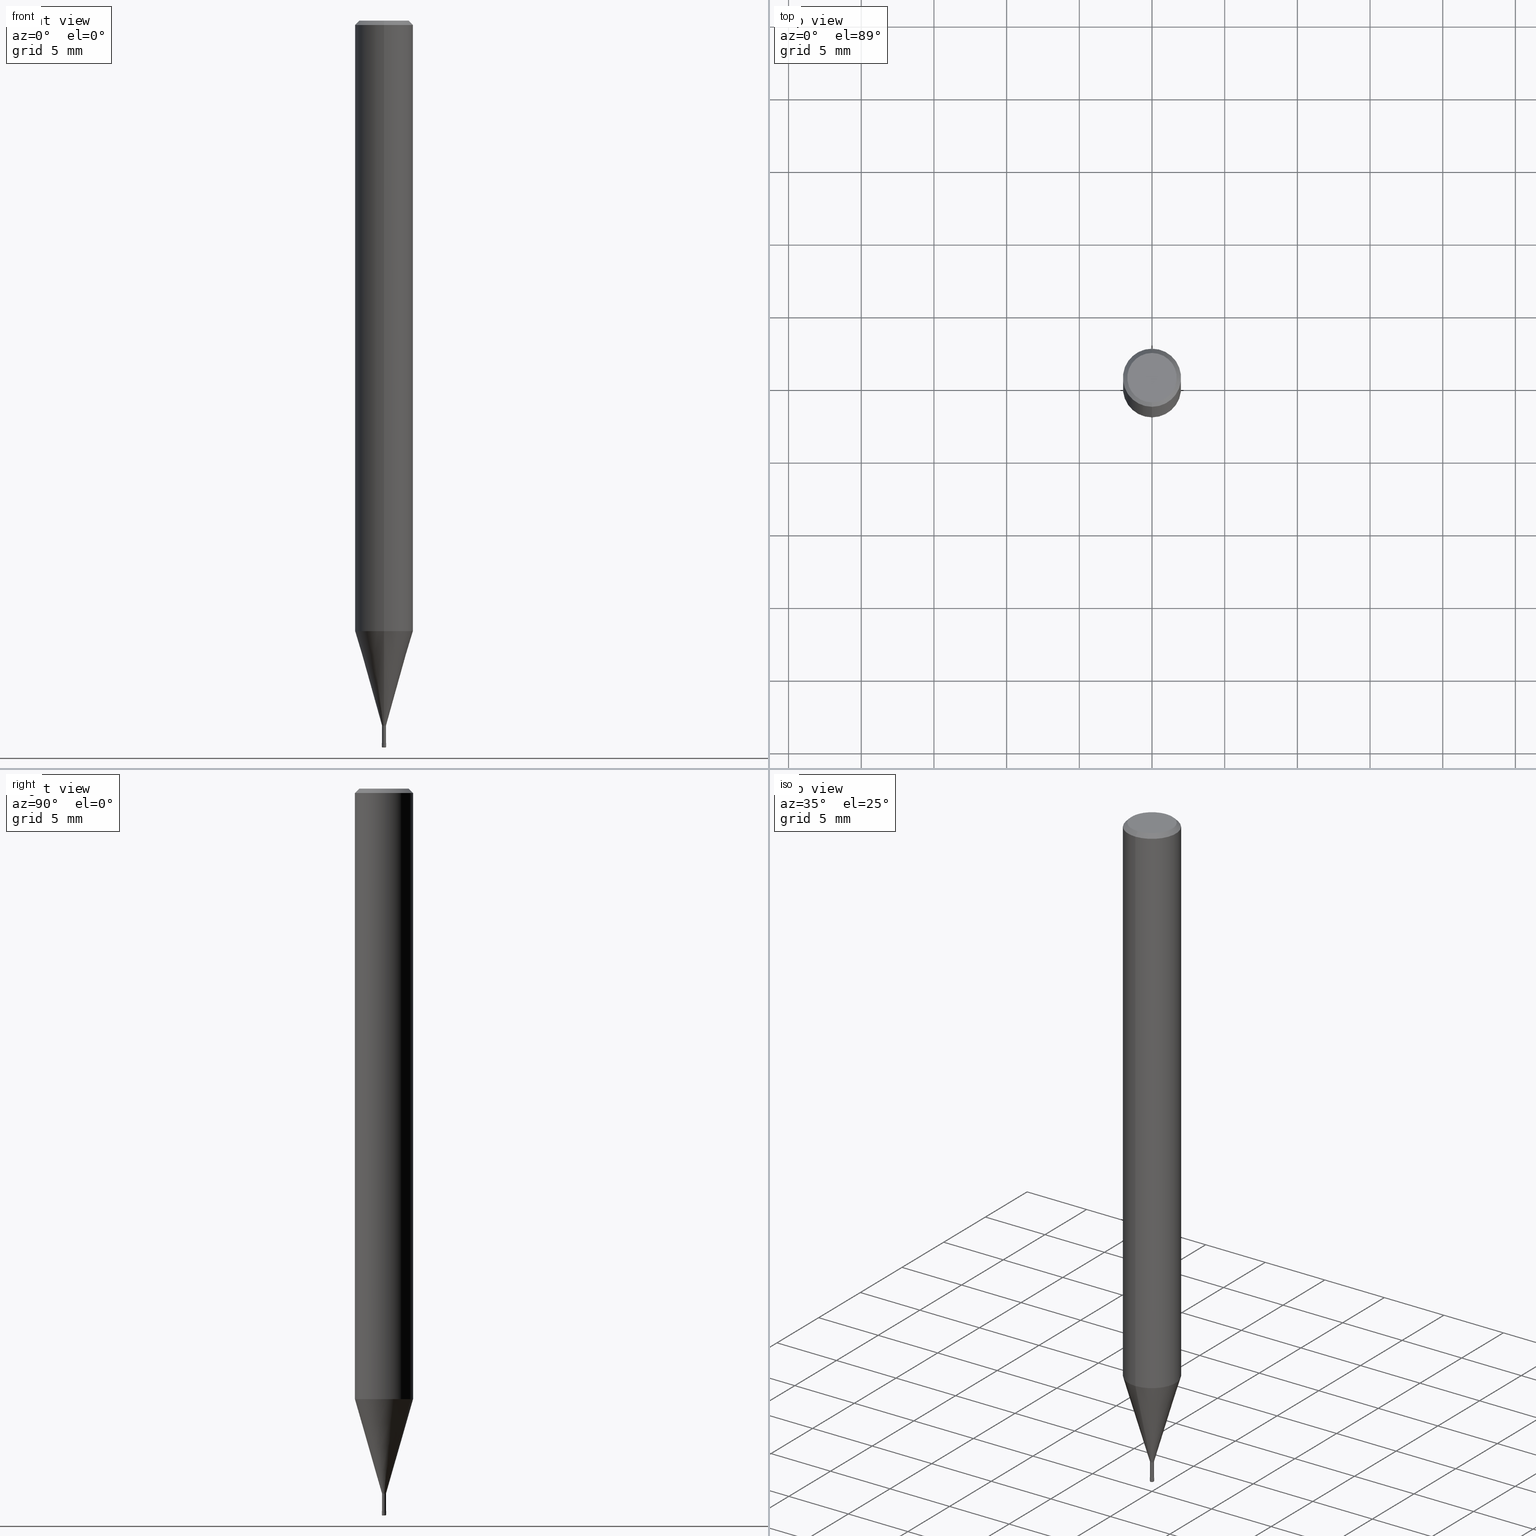
[diagram: canonical four-view strip — front | top / right | iso, engineering-drawing reading convention]
A machine part, canonical four-view strip (front | top / right | iso — engineering-drawing reading convention). The complete STEP part file that produces these views, byte-faithful:
ISO-10303-21;
HEADER;
FILE_DESCRIPTION(('no description'),'unknown implementation level');
FILE_NAME('HLRS2003-005-015E-Huellk.stp','  ',('CIMSOURCE GmbH'),('CADClick - KiM GmbH - www.kimweb.de'),'unknown preprocess','ACIS','unknown authorization');
FILE_SCHEMA(('automotive_design'));
ENDSEC;
DATA;
#1=MECHANICAL_DESIGN_GEOMETRIC_PRESENTATION_REPRESENTATION(' ',(#14,#15,#16,#17,#18,#19,#20,#21,#22,#23,#24,#25,#26,#27,#28,#29,#30,#31,#32,#33,#34,#35,#36,#37,#38,#39,#40,#41,#42,#43,#44,#45,#46,#47,#48,#49,#50,#51,#52,#53,#54,#55,#56,#57,#58,#59,#60,#61,#62,#63,#64,#65,#66,#67,#68,#69,#70,#71,#72,#73,#74,#75,#76,#77,#78,#79,#80),#10);
#2=PRODUCT_DEFINITION_CONTEXT('',#81,'design');
#3=APPLICATION_PROTOCOL_DEFINITION('INTERNATIONAL STANDARD','automotive_design',1994,#81);
#4=PRODUCT_CATEGORY_RELATIONSHIP('NONE','NONE',#82,#83);
#5=SHAPE_DEFINITION_REPRESENTATION(#84,#85);
#6=PRODUCT_DEFINITION_CONTEXT('',#86,'design');
#7=APPLICATION_PROTOCOL_DEFINITION('INTERNATIONAL STANDARD','automotive_design',1994,#86);
#8=PRODUCT_CATEGORY_RELATIONSHIP('NONE','NONE',#87,#88);
#9=SHAPE_DEFINITION_REPRESENTATION(#89,#90);
#10= (GEOMETRIC_REPRESENTATION_CONTEXT(3)GLOBAL_UNCERTAINTY_ASSIGNED_CONTEXT((#93))GLOBAL_UNIT_ASSIGNED_CONTEXT((#95,#96,#97))REPRESENTATION_CONTEXT('NONE','WORKSPACE'));
#14=STYLED_ITEM('',(#99),#100);
#15=STYLED_ITEM('',(#101),#102);
#16=STYLED_ITEM('',(#103),#104);
#17=STYLED_ITEM('',(#105),#106);
#18=STYLED_ITEM('',(#107),#108);
#19=STYLED_ITEM('',(#109),#110);
#20=STYLED_ITEM('',(#111),#112);
#21=STYLED_ITEM('',(#113),#114);
#22=STYLED_ITEM('',(#115),#116);
#23=STYLED_ITEM('',(#117),#118);
#24=STYLED_ITEM('',(#119),#120);
#25=STYLED_ITEM('',(#121),#122);
#26=STYLED_ITEM('',(#123),#124);
#27=STYLED_ITEM('',(#125),#126);
#28=STYLED_ITEM('',(#127),#128);
#29=STYLED_ITEM('',(#129),#130);
#30=STYLED_ITEM('',(#131),#132);
#31=STYLED_ITEM('',(#133),#134);
#32=STYLED_ITEM('',(#135),#136);
#33=STYLED_ITEM('',(#137),#138);
#34=STYLED_ITEM('',(#139),#140);
#35=STYLED_ITEM('',(#141),#142);
#36=STYLED_ITEM('',(#143),#144);
#37=STYLED_ITEM('',(#145),#146);
#38=STYLED_ITEM('',(#147),#148);
#39=STYLED_ITEM('',(#149),#150);
#40=STYLED_ITEM('',(#151),#152);
#41=STYLED_ITEM('',(#153),#154);
#42=STYLED_ITEM('',(#155),#156);
#43=STYLED_ITEM('',(#157),#158);
#44=STYLED_ITEM('',(#159),#160);
#45=STYLED_ITEM('',(#161),#162);
#46=STYLED_ITEM('',(#163),#164);
#47=STYLED_ITEM('',(#165),#166);
#48=STYLED_ITEM('',(#167),#168);
#49=STYLED_ITEM('',(#169),#170);
#50=STYLED_ITEM('',(#171),#172);
#51=STYLED_ITEM('',(#173),#174);
#52=STYLED_ITEM('',(#175),#176);
#53=STYLED_ITEM('',(#177),#178);
#54=STYLED_ITEM('',(#179),#180);
#55=STYLED_ITEM('',(#181),#182);
#56=STYLED_ITEM('',(#183),#184);
#57=STYLED_ITEM('',(#185),#186);
#58=STYLED_ITEM('',(#187),#188);
#59=STYLED_ITEM('',(#189),#190);
#60=STYLED_ITEM('',(#191),#192);
#61=STYLED_ITEM('',(#193),#194);
#62=STYLED_ITEM('',(#195),#196);
#63=STYLED_ITEM('',(#197),#198);
#64=STYLED_ITEM('',(#199),#200);
#65=STYLED_ITEM('',(#201),#202);
#66=STYLED_ITEM('',(#203),#204);
#67=STYLED_ITEM('',(#205),#206);
#68=STYLED_ITEM('',(#207),#208);
#69=STYLED_ITEM('',(#209),#210);
#70=STYLED_ITEM('',(#211),#212);
#71=STYLED_ITEM('',(#213),#214);
#72=STYLED_ITEM('',(#215),#216);
#73=STYLED_ITEM('',(#217),#218);
#74=STYLED_ITEM('',(#219),#220);
#75=STYLED_ITEM('',(#221),#222);
#76=STYLED_ITEM('',(#223),#224);
#77=STYLED_ITEM('',(#225),#226);
#78=STYLED_ITEM('',(#227),#228);
#79=STYLED_ITEM('',(#229),#230);
#80=STYLED_ITEM('',(#231),#232);
#81=APPLICATION_CONTEXT(' ');
#82=PRODUCT_CATEGORY('part','NONE');
#83=PRODUCT_RELATED_PRODUCT_CATEGORY('detail',' ',(#233));
#84=PRODUCT_DEFINITION_SHAPE('NONE','NONE',#234);
#85=ADVANCED_BREP_SHAPE_REPRESENTATION('1',(#194,#235),#10);
#86=APPLICATION_CONTEXT(' ');
#87=PRODUCT_CATEGORY('part','NONE');
#88=PRODUCT_RELATED_PRODUCT_CATEGORY('detail',' ',(#236));
#89=PRODUCT_DEFINITION_SHAPE('NONE','NONE',#237);
#90=ADVANCED_BREP_SHAPE_REPRESENTATION('2',(#170,#238),#10);
#93=UNCERTAINTY_MEASURE_WITH_UNIT(LENGTH_MEASURE(1.0E-006),#95,'','');
#95= (CONVERSION_BASED_UNIT('MILLIMETRE',#241)LENGTH_UNIT()NAMED_UNIT(#244));
#96= (NAMED_UNIT(#246)PLANE_ANGLE_UNIT()SI_UNIT($,.RADIAN.));
#97= (NAMED_UNIT(#246)SOLID_ANGLE_UNIT()SI_UNIT($,.STERADIAN.));
#99=PRESENTATION_STYLE_ASSIGNMENT((#252));
#100=VERTEX_POINT('',#253);
#101=PRESENTATION_STYLE_ASSIGNMENT((#254));
#102=EDGE_CURVE('',#220,#138,#255,.T.);
#103=PRESENTATION_STYLE_ASSIGNMENT((#256));
#104=VERTEX_POINT('',#257);
#105=PRESENTATION_STYLE_ASSIGNMENT((#258));
#106=EDGE_CURVE('',#230,#104,#259,.T.);
#107=PRESENTATION_STYLE_ASSIGNMENT((#260));
#108=EDGE_CURVE('',#190,#210,#261,.T.);
#109=PRESENTATION_STYLE_ASSIGNMENT((#262));
#110=ADVANCED_FACE('',(#263),#264,.T.);
#111=PRESENTATION_STYLE_ASSIGNMENT((#265));
#112=EDGE_CURVE('',#178,#140,#266,.T.);
#113=PRESENTATION_STYLE_ASSIGNMENT((#267));
#114=ADVANCED_FACE('',(#268,#269),#270,.T.);
#115=PRESENTATION_STYLE_ASSIGNMENT((#271));
#116=EDGE_CURVE('',#210,#190,#272,.T.);
#117=PRESENTATION_STYLE_ASSIGNMENT((#273));
#118=ADVANCED_FACE('',(#274),#275,.T.);
#119=PRESENTATION_STYLE_ASSIGNMENT((#276));
#120=EDGE_CURVE('',#140,#182,#277,.T.);
#121=PRESENTATION_STYLE_ASSIGNMENT((#278));
#122=EDGE_CURVE('',#174,#146,#279,.T.);
#123=PRESENTATION_STYLE_ASSIGNMENT((#280));
#124=ADVANCED_FACE('',(#281),#282,.T.);
#125=PRESENTATION_STYLE_ASSIGNMENT((#283));
#126=ADVANCED_FACE('',(#284),#285,.T.);
#127=PRESENTATION_STYLE_ASSIGNMENT((#286));
#128=VERTEX_POINT('',#287);
#129=PRESENTATION_STYLE_ASSIGNMENT((#288));
#130=EDGE_CURVE('',#128,#198,#289,.T.);
#131=PRESENTATION_STYLE_ASSIGNMENT((#290));
#132=EDGE_CURVE('',#148,#174,#291,.T.);
#133=PRESENTATION_STYLE_ASSIGNMENT((#292));
#134=EDGE_CURVE('',#182,#168,#293,.T.);
#135=PRESENTATION_STYLE_ASSIGNMENT((#294));
#136=ADVANCED_FACE('',(#295),#296,.T.);
#137=PRESENTATION_STYLE_ASSIGNMENT((#297));
#138=VERTEX_POINT('',#298);
#139=PRESENTATION_STYLE_ASSIGNMENT((#299));
#140=VERTEX_POINT('',#300);
#141=PRESENTATION_STYLE_ASSIGNMENT((#301));
#142=EDGE_CURVE('',#100,#186,#302,.T.);
#143=PRESENTATION_STYLE_ASSIGNMENT((#303));
#144=EDGE_CURVE('',#168,#182,#304,.T.);
#145=PRESENTATION_STYLE_ASSIGNMENT((#305));
#146=VERTEX_POINT('',#306);
#147=PRESENTATION_STYLE_ASSIGNMENT((#307));
#148=VERTEX_POINT('',#308);
#149=PRESENTATION_STYLE_ASSIGNMENT((#309));
#150=EDGE_CURVE('',#104,#210,#310,.T.);
#151=PRESENTATION_STYLE_ASSIGNMENT((#311));
#152=EDGE_CURVE('',#188,#198,#312,.T.);
#153=PRESENTATION_STYLE_ASSIGNMENT((#313));
#154=ADVANCED_FACE('',(#314),#315,.T.);
#155=PRESENTATION_STYLE_ASSIGNMENT((#316));
#156=EDGE_CURVE('',#188,#148,#317,.T.);
#157=PRESENTATION_STYLE_ASSIGNMENT((#318));
#158=ADVANCED_FACE('',(#319),#320,.T.);
#159=PRESENTATION_STYLE_ASSIGNMENT((#321));
#160=EDGE_CURVE('',#186,#100,#322,.T.);
#161=PRESENTATION_STYLE_ASSIGNMENT((#323));
#162=EDGE_CURVE('',#104,#230,#324,.T.);
#163=PRESENTATION_STYLE_ASSIGNMENT((#325));
#164=ADVANCED_FACE('',(#326),#327,.T.);
#165=PRESENTATION_STYLE_ASSIGNMENT((#328));
#166=ADVANCED_FACE('',(#329),#330,.T.);
#167=PRESENTATION_STYLE_ASSIGNMENT((#331));
#168=VERTEX_POINT('',#332);
#169=PRESENTATION_STYLE_ASSIGNMENT((#333));
#170=MANIFOLD_SOLID_BREP('2',#334);
#171=PRESENTATION_STYLE_ASSIGNMENT((#335));
#172=ADVANCED_FACE('',(#336),#337,.T.);
#173=PRESENTATION_STYLE_ASSIGNMENT((#338));
#174=VERTEX_POINT('',#339);
#175=PRESENTATION_STYLE_ASSIGNMENT((#340));
#176=ADVANCED_FACE('',(#341),#342,.T.);
#177=PRESENTATION_STYLE_ASSIGNMENT((#343));
#178=VERTEX_POINT('',#344);
#179=PRESENTATION_STYLE_ASSIGNMENT((#345));
#180=EDGE_CURVE('',#148,#128,#346,.T.);
#181=PRESENTATION_STYLE_ASSIGNMENT((#347));
#182=VERTEX_POINT('',#348);
#183=PRESENTATION_STYLE_ASSIGNMENT((#349));
#184=EDGE_CURVE('',#146,#128,#350,.T.);
#185=PRESENTATION_STYLE_ASSIGNMENT((#351));
#186=VERTEX_POINT('',#352);
#187=PRESENTATION_STYLE_ASSIGNMENT((#353));
#188=VERTEX_POINT('',#354);
#189=PRESENTATION_STYLE_ASSIGNMENT((#355));
#190=VERTEX_POINT('',#356);
#191=PRESENTATION_STYLE_ASSIGNMENT((#357));
#192=EDGE_CURVE('',#138,#190,#358,.T.);
#193=PRESENTATION_STYLE_ASSIGNMENT((#359));
#194=MANIFOLD_SOLID_BREP('1',#360);
#195=PRESENTATION_STYLE_ASSIGNMENT((#361));
#196=EDGE_CURVE('',#168,#178,#362,.T.);
#197=PRESENTATION_STYLE_ASSIGNMENT((#363));
#198=VERTEX_POINT('',#364);
#199=PRESENTATION_STYLE_ASSIGNMENT((#365));
#200=ADVANCED_FACE('',(#366),#367,.T.);
#201=PRESENTATION_STYLE_ASSIGNMENT((#368));
#202=ADVANCED_FACE('',(#369),#370,.T.);
#203=PRESENTATION_STYLE_ASSIGNMENT((#371));
#204=ADVANCED_FACE('',(#372),#373,.T.);
#205=PRESENTATION_STYLE_ASSIGNMENT((#374));
#206=EDGE_CURVE('',#140,#100,#375,.T.);
#207=PRESENTATION_STYLE_ASSIGNMENT((#376));
#208=EDGE_CURVE('',#186,#178,#377,.T.);
#209=PRESENTATION_STYLE_ASSIGNMENT((#378));
#210=VERTEX_POINT('',#379);
#211=PRESENTATION_STYLE_ASSIGNMENT((#380));
#212=ADVANCED_FACE('',(#381),#382,.T.);
#213=PRESENTATION_STYLE_ASSIGNMENT((#383));
#214=ADVANCED_FACE('',(#384),#385,.T.);
#215=PRESENTATION_STYLE_ASSIGNMENT((#386));
#216=EDGE_CURVE('',#198,#188,#387,.T.);
#217=PRESENTATION_STYLE_ASSIGNMENT((#388));
#218=EDGE_CURVE('',#128,#148,#389,.T.);
#219=PRESENTATION_STYLE_ASSIGNMENT((#390));
#220=VERTEX_POINT('',#391);
#221=PRESENTATION_STYLE_ASSIGNMENT((#392));
#222=EDGE_CURVE('',#210,#220,#393,.T.);
#223=PRESENTATION_STYLE_ASSIGNMENT((#394));
#224=EDGE_CURVE('',#190,#230,#395,.T.);
#225=PRESENTATION_STYLE_ASSIGNMENT((#396));
#226=EDGE_CURVE('',#138,#220,#397,.T.);
#227=PRESENTATION_STYLE_ASSIGNMENT((#398));
#228=EDGE_CURVE('',#140,#178,#399,.T.);
#229=PRESENTATION_STYLE_ASSIGNMENT((#400));
#230=VERTEX_POINT('',#401);
#231=PRESENTATION_STYLE_ASSIGNMENT((#402));
#232=EDGE_CURVE('',#146,#174,#403,.T.);
#233=PRODUCT('1','1','PART-1-DESC',(#404));
#234=PRODUCT_DEFINITION('NONE','NONE',#405,#2);
#235=AXIS2_PLACEMENT_3D('',#406,#407,#408);
#236=PRODUCT('2','2','PART-2-DESC',(#409));
#237=PRODUCT_DEFINITION('NONE','NONE',#410,#6);
#238=AXIS2_PLACEMENT_3D('',#411,#412,#413);
#241=LENGTH_MEASURE_WITH_UNIT(LENGTH_MEASURE(1.0),#414);
#244=DIMENSIONAL_EXPONENTS(1.0,0.0,0.0,0.0,0.0,0.0,0.0);
#246=DIMENSIONAL_EXPONENTS(0.0,0.0,0.0,0.0,0.0,0.0,0.0);
#252=POINT_STYLE(' ',#415,POSITIVE_LENGTH_MEASURE(1.0E-006),#416);
#253=CARTESIAN_POINT('',(1.22460635382238E-017,-0.1,-50.0));
#254=CURVE_STYLE('',#417,POSITIVE_LENGTH_MEASURE(1.0E-006),#418);
#255=CIRCLE('',#419,2.0);
#256=POINT_STYLE(' ',#420,POSITIVE_LENGTH_MEASURE(1.0E-006),#421);
#257=CARTESIAN_POINT('',(0.0,1.7,0.0));
#258=CURVE_STYLE('',#422,POSITIVE_LENGTH_MEASURE(1.0E-006),#423);
#259=CIRCLE('',#424,1.7);
#260=CURVE_STYLE('',#425,POSITIVE_LENGTH_MEASURE(1.0E-006),#426);
#261=CIRCLE('',#427,2.0);
#262=SURFACE_STYLE_USAGE(.BOTH.,#428);
#263=FACE_OUTER_BOUND('',#429,.T.);
#264=CYLINDRICAL_SURFACE('',#430,2.0);
#265=CURVE_STYLE('',#431,POSITIVE_LENGTH_MEASURE(1.0E-006),#432);
#266=CIRCLE('',#433,0.15);
#267=SURFACE_STYLE_USAGE(.BOTH.,#434);
#268=FACE_OUTER_BOUND('',#435,.T.);
#269=FACE_BOUND('',#436,.T.);
#270=PLANE('',#437);
#271=CURVE_STYLE('',#438,POSITIVE_LENGTH_MEASURE(1.0E-006),#439);
#272=CIRCLE('',#440,2.0);
#273=SURFACE_STYLE_USAGE(.BOTH.,#441);
#274=FACE_OUTER_BOUND('',#442,.T.);
#275=TOROIDAL_SURFACE('',#443,0.1,0.0499999999999998);
#276=CURVE_STYLE('',#444,POSITIVE_LENGTH_MEASURE(1.0E-006),#445);
#277=LINE('',#446,#447);
#278=CURVE_STYLE('',#448,POSITIVE_LENGTH_MEASURE(1.0E-006),#449);
#279=CIRCLE('',#450,0.13495);
#280=SURFACE_STYLE_USAGE(.BOTH.,#451);
#281=FACE_OUTER_BOUND('',#452,.T.);
#282=PLANE('',#453);
#283=SURFACE_STYLE_USAGE(.BOTH.,#454);
#284=FACE_OUTER_BOUND('',#455,.T.);
#285=CYLINDRICAL_SURFACE('',#456,2.0);
#286=POINT_STYLE(' ',#457,POSITIVE_LENGTH_MEASURE(1.0E-006),#458);
#287=CARTESIAN_POINT('',(1.6526062744833E-017,-0.13495,-48.5));
#288=CURVE_STYLE('',#459,POSITIVE_LENGTH_MEASURE(1.0E-006),#460);
#289=LINE('',#461,#462);
#290=CURVE_STYLE('',#463,POSITIVE_LENGTH_MEASURE(1.0E-006),#464);
#291=LINE('',#465,#466);
#292=CURVE_STYLE('',#467,POSITIVE_LENGTH_MEASURE(1.0E-006),#468);
#293=CIRCLE('',#469,0.1499);
#294=SURFACE_STYLE_USAGE(.BOTH.,#470);
#295=FACE_OUTER_BOUND('',#471,.T.);
#296=CONICAL_SURFACE('',#472,1.06745,0.279253818445948);
#297=POINT_STYLE(' ',#473,POSITIVE_LENGTH_MEASURE(1.0E-006),#474);
#298=CARTESIAN_POINT('',(2.44921270764475E-016,-2.0,-41.996));
#299=POINT_STYLE(' ',#475,POSITIVE_LENGTH_MEASURE(1.0E-006),#476);
#300=CARTESIAN_POINT('',(1.83690953073357E-017,-0.15,-49.95));
#301=CURVE_STYLE('',#477,POSITIVE_LENGTH_MEASURE(1.0E-006),#478);
#302=CIRCLE('',#479,0.1);
#303=CURVE_STYLE('',#480,POSITIVE_LENGTH_MEASURE(1.0E-006),#481);
#304=CIRCLE('',#482,0.1499);
#305=POINT_STYLE(' ',#483,POSITIVE_LENGTH_MEASURE(1.0E-006),#484);
#306=CARTESIAN_POINT('',(1.6526062744833E-017,-0.13495,-49.7));
#307=POINT_STYLE(' ',#485,POSITIVE_LENGTH_MEASURE(1.0E-006),#486);
#308=CARTESIAN_POINT('',(0.0,0.13495,-48.5));
#309=CURVE_STYLE('',#487,POSITIVE_LENGTH_MEASURE(1.0E-006),#488);
#310=LINE('',#489,#490);
#311=CURVE_STYLE('',#491,POSITIVE_LENGTH_MEASURE(1.0E-006),#492);
#312=CIRCLE('',#493,1.99995);
#313=SURFACE_STYLE_USAGE(.BOTH.,#494);
#314=FACE_OUTER_BOUND('',#495,.T.);
#315=CONICAL_SURFACE('',#496,1.06745,0.279253818445948);
#316=CURVE_STYLE('',#497,POSITIVE_LENGTH_MEASURE(1.0E-006),#498);
#317=LINE('',#499,#500);
#318=SURFACE_STYLE_USAGE(.BOTH.,#501);
#319=FACE_OUTER_BOUND('',#502,.T.);
#320=PLANE('',#503);
#321=CURVE_STYLE('',#504,POSITIVE_LENGTH_MEASURE(1.0E-006),#505);
#322=CIRCLE('',#506,0.1);
#323=CURVE_STYLE('',#507,POSITIVE_LENGTH_MEASURE(1.0E-006),#508);
#324=CIRCLE('',#509,1.7);
#325=SURFACE_STYLE_USAGE(.BOTH.,#510);
#326=FACE_OUTER_BOUND('',#511,.T.);
#327=CYLINDRICAL_SURFACE('',#512,0.13495);
#328=SURFACE_STYLE_USAGE(.BOTH.,#513);
#329=FACE_OUTER_BOUND('',#514,.T.);
#330=TOROIDAL_SURFACE('',#515,0.1,0.0499999999999998);
#331=POINT_STYLE(' ',#516,POSITIVE_LENGTH_MEASURE(1.0E-006),#517);
#332=CARTESIAN_POINT('',(0.0,0.1499,-49.7));
#333=SURFACE_STYLE_USAGE(.BOTH.,#518);
#334=CLOSED_SHELL('',(#118,#200,#124,#172,#166,#202));
#335=SURFACE_STYLE_USAGE(.BOTH.,#519);
#336=FACE_OUTER_BOUND('',#520,.T.);
#337=CONICAL_SURFACE('',#521,0.14995,0.000399999978666625);
#338=POINT_STYLE(' ',#522,POSITIVE_LENGTH_MEASURE(1.0E-006),#523);
#339=CARTESIAN_POINT('',(0.0,0.13495,-49.7));
#340=SURFACE_STYLE_USAGE(.BOTH.,#524);
#341=FACE_OUTER_BOUND('',#525,.T.);
#342=PLANE('',#526);
#343=POINT_STYLE(' ',#527,POSITIVE_LENGTH_MEASURE(1.0E-006),#528);
#344=CARTESIAN_POINT('',(0.0,0.15,-49.95));
#345=CURVE_STYLE('',#529,POSITIVE_LENGTH_MEASURE(1.0E-006),#530);
#346=CIRCLE('',#531,0.13495);
#347=POINT_STYLE(' ',#532,POSITIVE_LENGTH_MEASURE(1.0E-006),#533);
#348=CARTESIAN_POINT('',(1.83568492437974E-017,-0.1499,-49.7));
#349=CURVE_STYLE('',#534,POSITIVE_LENGTH_MEASURE(1.0E-006),#535);
#350=LINE('',#536,#537);
#351=POINT_STYLE(' ',#538,POSITIVE_LENGTH_MEASURE(1.0E-006),#539);
#352=CARTESIAN_POINT('',(0.0,0.1,-50.0));
#353=POINT_STYLE(' ',#540,POSITIVE_LENGTH_MEASURE(1.0E-006),#541);
#354=CARTESIAN_POINT('',(0.0,1.99995,-41.996));
#355=POINT_STYLE(' ',#542,POSITIVE_LENGTH_MEASURE(1.0E-006),#543);
#356=CARTESIAN_POINT('',(2.44921270764475E-016,-2.0,-0.299999999999997));
#357=CURVE_STYLE('',#544,POSITIVE_LENGTH_MEASURE(1.0E-006),#545);
#358=LINE('',#546,#547);
#359=SURFACE_STYLE_USAGE(.BOTH.,#548);
#360=CLOSED_SHELL('',(#214,#136,#126,#212,#114,#176,#204,#110,#154,#164,#158));
#361=CURVE_STYLE('',#549,POSITIVE_LENGTH_MEASURE(1.0E-006),#550);
#362=LINE('',#551,#552);
#363=POINT_STYLE(' ',#553,POSITIVE_LENGTH_MEASURE(1.0E-006),#554);
#364=CARTESIAN_POINT('',(2.44915147732706E-016,-1.99995,-41.996));
#365=SURFACE_STYLE_USAGE(.BOTH.,#555);
#366=FACE_OUTER_BOUND('',#556,.T.);
#367=CONICAL_SURFACE('',#557,0.14995,0.000399999978666625);
#368=SURFACE_STYLE_USAGE(.BOTH.,#558);
#369=FACE_OUTER_BOUND('',#559,.T.);
#370=PLANE('',#560);
#371=SURFACE_STYLE_USAGE(.BOTH.,#561);
#372=FACE_OUTER_BOUND('',#562,.T.);
#373=CONICAL_SURFACE('',#563,1.85,0.785398163397453);
#374=CURVE_STYLE('',#564,POSITIVE_LENGTH_MEASURE(1.0E-006),#565);
#375=CIRCLE('',#566,0.0499999999999998);
#376=CURVE_STYLE('',#567,POSITIVE_LENGTH_MEASURE(1.0E-006),#568);
#377=CIRCLE('',#569,0.0499999999999998);
#378=POINT_STYLE(' ',#570,POSITIVE_LENGTH_MEASURE(1.0E-006),#571);
#379=CARTESIAN_POINT('',(0.0,2.0,-0.299999999999997));
#380=SURFACE_STYLE_USAGE(.BOTH.,#572);
#381=FACE_OUTER_BOUND('',#573,.T.);
#382=CONICAL_SURFACE('',#574,1.85,0.785398163397453);
#383=SURFACE_STYLE_USAGE(.BOTH.,#575);
#384=FACE_OUTER_BOUND('',#576,.T.);
#385=CYLINDRICAL_SURFACE('',#577,0.13495);
#386=CURVE_STYLE('',#578,POSITIVE_LENGTH_MEASURE(1.0E-006),#579);
#387=CIRCLE('',#580,1.99995);
#388=CURVE_STYLE('',#581,POSITIVE_LENGTH_MEASURE(1.0E-006),#582);
#389=CIRCLE('',#583,0.13495);
#390=POINT_STYLE(' ',#584,POSITIVE_LENGTH_MEASURE(1.0E-006),#585);
#391=CARTESIAN_POINT('',(0.0,2.0,-41.996));
#392=CURVE_STYLE('',#586,POSITIVE_LENGTH_MEASURE(1.0E-006),#587);
#393=LINE('',#588,#589);
#394=CURVE_STYLE('',#590,POSITIVE_LENGTH_MEASURE(1.0E-006),#591);
#395=LINE('',#592,#593);
#396=CURVE_STYLE('',#594,POSITIVE_LENGTH_MEASURE(1.0E-006),#595);
#397=CIRCLE('',#596,2.0);
#398=CURVE_STYLE('',#597,POSITIVE_LENGTH_MEASURE(1.0E-006),#598);
#399=CIRCLE('',#599,0.15);
#400=POINT_STYLE(' ',#600,POSITIVE_LENGTH_MEASURE(1.0E-006),#601);
#401=CARTESIAN_POINT('',(2.08183080149804E-016,-1.7,0.0));
#402=CURVE_STYLE('',#602,POSITIVE_LENGTH_MEASURE(1.0E-006),#603);
#403=CIRCLE('',#604,0.13495);
#404=PRODUCT_CONTEXT('',#81,'mechanical');
#405=PRODUCT_DEFINITION_FORMATION_WITH_SPECIFIED_SOURCE(' ','NONE',#233,.NOT_KNOWN.);
#406=CARTESIAN_POINT('',(0.0,0.0,0.0));
#407=DIRECTION('',(0.0,0.0,1.0));
#408=DIRECTION('',(1.0,0.0,0.0));
#409=PRODUCT_CONTEXT('',#86,'mechanical');
#410=PRODUCT_DEFINITION_FORMATION_WITH_SPECIFIED_SOURCE(' ','NONE',#236,.NOT_KNOWN.);
#411=CARTESIAN_POINT('',(0.0,0.0,0.0));
#412=DIRECTION('',(0.0,0.0,1.0));
#413=DIRECTION('',(1.0,0.0,0.0));
#414= (NAMED_UNIT(#244)LENGTH_UNIT()SI_UNIT(.MILLI.,.METRE.));
#415=PRE_DEFINED_MARKER('');
#416=COLOUR_RGB('',0.800000011920929,0.800000011920929,0.800000011920929);
#417=DRAUGHTING_PRE_DEFINED_CURVE_FONT('continuous');
#418=COLOUR_RGB('',0.498039215803146,0.498039215803146,0.498039215803146);
#419=AXIS2_PLACEMENT_3D('',#606,#607,#608);
#420=PRE_DEFINED_MARKER('');
#421=COLOUR_RGB('',0.498039215803146,0.498039215803146,0.498039215803146);
#422=DRAUGHTING_PRE_DEFINED_CURVE_FONT('continuous');
#423=COLOUR_RGB('',0.498039215803146,0.498039215803146,0.498039215803146);
#424=AXIS2_PLACEMENT_3D('',#609,#610,#611);
#425=DRAUGHTING_PRE_DEFINED_CURVE_FONT('continuous');
#426=COLOUR_RGB('',0.498039215803146,0.498039215803146,0.498039215803146);
#427=AXIS2_PLACEMENT_3D('',#612,#613,#614);
#428=SURFACE_SIDE_STYLE('',(#615));
#429=EDGE_LOOP('',(#616,#617,#618,#619));
#430=AXIS2_PLACEMENT_3D('',#620,#621,#622);
#431=DRAUGHTING_PRE_DEFINED_CURVE_FONT('continuous');
#432=COLOUR_RGB('',0.800000011920929,0.800000011920929,0.800000011920929);
#433=AXIS2_PLACEMENT_3D('',#623,#624,#625);
#434=SURFACE_SIDE_STYLE('',(#626));
#435=EDGE_LOOP('',(#627,#628));
#436=EDGE_LOOP('',(#629,#630));
#437=AXIS2_PLACEMENT_3D('',#631,#632,#633);
#438=DRAUGHTING_PRE_DEFINED_CURVE_FONT('continuous');
#439=COLOUR_RGB('',0.498039215803146,0.498039215803146,0.498039215803146);
#440=AXIS2_PLACEMENT_3D('',#634,#635,#636);
#441=SURFACE_SIDE_STYLE('',(#637));
#442=EDGE_LOOP('',(#638,#639,#640,#641));
#443=AXIS2_PLACEMENT_3D('',#642,#643,#644);
#444=DRAUGHTING_PRE_DEFINED_CURVE_FONT('continuous');
#445=COLOUR_RGB('',0.800000011920929,0.800000011920929,0.800000011920929);
#446=CARTESIAN_POINT('',(1.83629722755666E-017,-0.14995,-49.825));
#447=VECTOR('',#645,1.0);
#448=DRAUGHTING_PRE_DEFINED_CURVE_FONT('continuous');
#449=COLOUR_RGB('',0.498039215803146,0.498039215803146,0.498039215803146);
#450=AXIS2_PLACEMENT_3D('',#646,#647,#648);
#451=SURFACE_SIDE_STYLE('',(#649));
#452=EDGE_LOOP('',(#650,#651));
#453=AXIS2_PLACEMENT_3D('',#652,#653,#654);
#454=SURFACE_SIDE_STYLE('',(#655));
#455=EDGE_LOOP('',(#656,#657,#658,#659));
#456=AXIS2_PLACEMENT_3D('',#660,#661,#662);
#457=PRE_DEFINED_MARKER('');
#458=COLOUR_RGB('',0.498039215803146,0.498039215803146,0.498039215803146);
#459=DRAUGHTING_PRE_DEFINED_CURVE_FONT('continuous');
#460=COLOUR_RGB('',0.498039215803146,0.498039215803146,0.498039215803146);
#461=CARTESIAN_POINT('',(1.3072060523877E-016,-1.06745,-45.248));
#462=VECTOR('',#663,1.0);
#463=DRAUGHTING_PRE_DEFINED_CURVE_FONT('continuous');
#464=COLOUR_RGB('',0.498039215803146,0.498039215803146,0.498039215803146);
#465=CARTESIAN_POINT('',(-1.6526062744833E-017,0.13495,-49.1));
#466=VECTOR('',#664,1.0);
#467=DRAUGHTING_PRE_DEFINED_CURVE_FONT('continuous');
#468=COLOUR_RGB('',0.800000011920929,0.800000011920929,0.800000011920929);
#469=AXIS2_PLACEMENT_3D('',#665,#666,#667);
#470=SURFACE_SIDE_STYLE('',(#668));
#471=EDGE_LOOP('',(#669,#670,#671,#672));
#472=AXIS2_PLACEMENT_3D('',#673,#674,#675);
#473=PRE_DEFINED_MARKER('');
#474=COLOUR_RGB('',0.498039215803146,0.498039215803146,0.498039215803146);
#475=PRE_DEFINED_MARKER('');
#476=COLOUR_RGB('',0.800000011920929,0.800000011920929,0.800000011920929);
#477=DRAUGHTING_PRE_DEFINED_CURVE_FONT('continuous');
#478=COLOUR_RGB('',0.800000011920929,0.800000011920929,0.800000011920929);
#479=AXIS2_PLACEMENT_3D('',#676,#677,#678);
#480=DRAUGHTING_PRE_DEFINED_CURVE_FONT('continuous');
#481=COLOUR_RGB('',0.800000011920929,0.800000011920929,0.800000011920929);
#482=AXIS2_PLACEMENT_3D('',#679,#680,#681);
#483=PRE_DEFINED_MARKER('');
#484=COLOUR_RGB('',0.498039215803146,0.498039215803146,0.498039215803146);
#485=PRE_DEFINED_MARKER('');
#486=COLOUR_RGB('',0.498039215803146,0.498039215803146,0.498039215803146);
#487=DRAUGHTING_PRE_DEFINED_CURVE_FONT('continuous');
#488=COLOUR_RGB('',0.498039215803146,0.498039215803146,0.498039215803146);
#489=CARTESIAN_POINT('',(-2.2655217545714E-016,1.85,-0.149999999999999));
#490=VECTOR('',#682,1.0);
#491=DRAUGHTING_PRE_DEFINED_CURVE_FONT('continuous');
#492=COLOUR_RGB('',0.498039215803146,0.498039215803146,0.498039215803146);
#493=AXIS2_PLACEMENT_3D('',#683,#684,#685);
#494=SURFACE_SIDE_STYLE('',(#686));
#495=EDGE_LOOP('',(#687,#688,#689,#690));
#496=AXIS2_PLACEMENT_3D('',#691,#692,#693);
#497=DRAUGHTING_PRE_DEFINED_CURVE_FONT('continuous');
#498=COLOUR_RGB('',0.498039215803146,0.498039215803146,0.498039215803146);
#499=CARTESIAN_POINT('',(-1.3072060523877E-016,1.06745,-45.248));
#500=VECTOR('',#694,1.0);
#501=SURFACE_SIDE_STYLE('',(#695));
#502=EDGE_LOOP('',(#696,#697));
#503=AXIS2_PLACEMENT_3D('',#698,#699,#700);
#504=DRAUGHTING_PRE_DEFINED_CURVE_FONT('continuous');
#505=COLOUR_RGB('',0.800000011920929,0.800000011920929,0.800000011920929);
#506=AXIS2_PLACEMENT_3D('',#701,#702,#703);
#507=DRAUGHTING_PRE_DEFINED_CURVE_FONT('continuous');
#508=COLOUR_RGB('',0.498039215803146,0.498039215803146,0.498039215803146);
#509=AXIS2_PLACEMENT_3D('',#704,#705,#706);
#510=SURFACE_SIDE_STYLE('',(#707));
#511=EDGE_LOOP('',(#708,#709,#710,#711));
#512=AXIS2_PLACEMENT_3D('',#712,#713,#714);
#513=SURFACE_SIDE_STYLE('',(#715));
#514=EDGE_LOOP('',(#716,#717,#718,#719));
#515=AXIS2_PLACEMENT_3D('',#720,#721,#722);
#516=PRE_DEFINED_MARKER('');
#517=COLOUR_RGB('',0.800000011920929,0.800000011920929,0.800000011920929);
#518=SURFACE_SIDE_STYLE('',(#723));
#519=SURFACE_SIDE_STYLE('',(#724));
#520=EDGE_LOOP('',(#725,#726,#727,#728));
#521=AXIS2_PLACEMENT_3D('',#729,#730,#731);
#522=PRE_DEFINED_MARKER('');
#523=COLOUR_RGB('',0.498039215803146,0.498039215803146,0.498039215803146);
#524=SURFACE_SIDE_STYLE('',(#732));
#525=EDGE_LOOP('',(#733,#734));
#526=AXIS2_PLACEMENT_3D('',#735,#736,#737);
#527=PRE_DEFINED_MARKER('');
#528=COLOUR_RGB('',0.800000011920929,0.800000011920929,0.800000011920929);
#529=DRAUGHTING_PRE_DEFINED_CURVE_FONT('continuous');
#530=COLOUR_RGB('',0.498039215803146,0.498039215803146,0.498039215803146);
#531=AXIS2_PLACEMENT_3D('',#738,#739,#740);
#532=PRE_DEFINED_MARKER('');
#533=COLOUR_RGB('',0.800000011920929,0.800000011920929,0.800000011920929);
#534=DRAUGHTING_PRE_DEFINED_CURVE_FONT('continuous');
#535=COLOUR_RGB('',0.498039215803146,0.498039215803146,0.498039215803146);
#536=CARTESIAN_POINT('',(1.6526062744833E-017,-0.13495,-49.1));
#537=VECTOR('',#741,1.0);
#538=PRE_DEFINED_MARKER('');
#539=COLOUR_RGB('',0.800000011920929,0.800000011920929,0.800000011920929);
#540=PRE_DEFINED_MARKER('');
#541=COLOUR_RGB('',0.498039215803146,0.498039215803146,0.498039215803146);
#542=PRE_DEFINED_MARKER('');
#543=COLOUR_RGB('',0.498039215803146,0.498039215803146,0.498039215803146);
#544=DRAUGHTING_PRE_DEFINED_CURVE_FONT('continuous');
#545=COLOUR_RGB('',0.498039215803146,0.498039215803146,0.498039215803146);
#546=CARTESIAN_POINT('',(2.44921270764475E-016,-2.0,-21.148));
#547=VECTOR('',#742,1.0);
#548=SURFACE_SIDE_STYLE('',(#743));
#549=DRAUGHTING_PRE_DEFINED_CURVE_FONT('continuous');
#550=COLOUR_RGB('',0.800000011920929,0.800000011920929,0.800000011920929);
#551=CARTESIAN_POINT('',(-1.83629722755666E-017,0.14995,-49.825));
#552=VECTOR('',#744,1.0);
#553=PRE_DEFINED_MARKER('');
#554=COLOUR_RGB('',0.498039215803146,0.498039215803146,0.498039215803146);
#555=SURFACE_SIDE_STYLE('',(#745));
#556=EDGE_LOOP('',(#746,#747,#748,#749));
#557=AXIS2_PLACEMENT_3D('',#750,#751,#752);
#558=SURFACE_SIDE_STYLE('',(#753));
#559=EDGE_LOOP('',(#754,#755));
#560=AXIS2_PLACEMENT_3D('',#756,#757,#758);
#561=SURFACE_SIDE_STYLE('',(#759));
#562=EDGE_LOOP('',(#760,#761,#762,#763));
#563=AXIS2_PLACEMENT_3D('',#764,#765,#766);
#564=DRAUGHTING_PRE_DEFINED_CURVE_FONT('continuous');
#565=COLOUR_RGB('',0.800000011920929,0.800000011920929,0.800000011920929);
#566=AXIS2_PLACEMENT_3D('',#767,#768,#769);
#567=DRAUGHTING_PRE_DEFINED_CURVE_FONT('continuous');
#568=COLOUR_RGB('',0.800000011920929,0.800000011920929,0.800000011920929);
#569=AXIS2_PLACEMENT_3D('',#770,#771,#772);
#570=PRE_DEFINED_MARKER('');
#571=COLOUR_RGB('',0.498039215803146,0.498039215803146,0.498039215803146);
#572=SURFACE_SIDE_STYLE('',(#773));
#573=EDGE_LOOP('',(#774,#775,#776,#777));
#574=AXIS2_PLACEMENT_3D('',#778,#779,#780);
#575=SURFACE_SIDE_STYLE('',(#781));
#576=EDGE_LOOP('',(#782,#783,#784,#785));
#577=AXIS2_PLACEMENT_3D('',#786,#787,#788);
#578=DRAUGHTING_PRE_DEFINED_CURVE_FONT('continuous');
#579=COLOUR_RGB('',0.498039215803146,0.498039215803146,0.498039215803146);
#580=AXIS2_PLACEMENT_3D('',#789,#790,#791);
#581=DRAUGHTING_PRE_DEFINED_CURVE_FONT('continuous');
#582=COLOUR_RGB('',0.498039215803146,0.498039215803146,0.498039215803146);
#583=AXIS2_PLACEMENT_3D('',#792,#793,#794);
#584=PRE_DEFINED_MARKER('');
#585=COLOUR_RGB('',0.498039215803146,0.498039215803146,0.498039215803146);
#586=DRAUGHTING_PRE_DEFINED_CURVE_FONT('continuous');
#587=COLOUR_RGB('',0.498039215803146,0.498039215803146,0.498039215803146);
#588=CARTESIAN_POINT('',(-2.44921270764475E-016,2.0,-21.148));
#589=VECTOR('',#795,1.0);
#590=DRAUGHTING_PRE_DEFINED_CURVE_FONT('continuous');
#591=COLOUR_RGB('',0.498039215803146,0.498039215803146,0.498039215803146);
#592=CARTESIAN_POINT('',(2.2655217545714E-016,-1.85,-0.149999999999999));
#593=VECTOR('',#796,1.0);
#594=DRAUGHTING_PRE_DEFINED_CURVE_FONT('continuous');
#595=COLOUR_RGB('',0.498039215803146,0.498039215803146,0.498039215803146);
#596=AXIS2_PLACEMENT_3D('',#797,#798,#799);
#597=DRAUGHTING_PRE_DEFINED_CURVE_FONT('continuous');
#598=COLOUR_RGB('',0.800000011920929,0.800000011920929,0.800000011920929);
#599=AXIS2_PLACEMENT_3D('',#800,#801,#802);
#600=PRE_DEFINED_MARKER('');
#601=COLOUR_RGB('',0.498039215803146,0.498039215803146,0.498039215803146);
#602=DRAUGHTING_PRE_DEFINED_CURVE_FONT('continuous');
#603=COLOUR_RGB('',0.498039215803146,0.498039215803146,0.498039215803146);
#604=AXIS2_PLACEMENT_3D('',#803,#804,#805);
#606=CARTESIAN_POINT('',(0.0,0.0,-41.996));
#607=DIRECTION('',(0.0,0.0,-1.0));
#608=DIRECTION('',(0.0,1.0,0.0));
#609=CARTESIAN_POINT('',(0.0,0.0,0.0));
#610=DIRECTION('',(0.0,0.0,-1.0));
#611=DIRECTION('',(0.0,1.0,0.0));
#612=CARTESIAN_POINT('',(0.0,0.0,-0.299999999999997));
#613=DIRECTION('',(0.0,0.0,-1.0));
#614=DIRECTION('',(0.0,1.0,0.0));
#615=SURFACE_STYLE_FILL_AREA(#806);
#616=ORIENTED_EDGE('',*,*,#222,.T.);
#617=ORIENTED_EDGE('',*,*,#226,.F.);
#618=ORIENTED_EDGE('',*,*,#192,.T.);
#619=ORIENTED_EDGE('',*,*,#108,.T.);
#620=CARTESIAN_POINT('',(0.0,0.0,-21.148));
#621=DIRECTION('',(-0.0,-0.0,1.0));
#622=DIRECTION('',(0.0,1.0,0.0));
#623=CARTESIAN_POINT('',(0.0,0.0,-49.95));
#624=DIRECTION('',(0.0,0.0,-1.0));
#625=DIRECTION('',(0.0,1.0,0.0));
#626=SURFACE_STYLE_FILL_AREA(#807);
#627=ORIENTED_EDGE('',*,*,#102,.T.);
#628=ORIENTED_EDGE('',*,*,#226,.T.);
#629=ORIENTED_EDGE('',*,*,#152,.F.);
#630=ORIENTED_EDGE('',*,*,#216,.F.);
#631=CARTESIAN_POINT('',(0.0,1.0,-41.996));
#632=DIRECTION('',(0.0,0.0,-1.0));
#633=DIRECTION('',(0.0,1.0,0.0));
#634=CARTESIAN_POINT('',(0.0,0.0,-0.299999999999997));
#635=DIRECTION('',(0.0,0.0,-1.0));
#636=DIRECTION('',(0.0,1.0,0.0));
#637=SURFACE_STYLE_FILL_AREA(#808);
#638=ORIENTED_EDGE('',*,*,#206,.F.);
#639=ORIENTED_EDGE('',*,*,#228,.T.);
#640=ORIENTED_EDGE('',*,*,#208,.F.);
#641=ORIENTED_EDGE('',*,*,#142,.F.);
#642=CARTESIAN_POINT('',(0.0,0.0,-49.95));
#643=DIRECTION('',(0.0,0.0,-1.0));
#644=DIRECTION('',(0.0,-1.0,0.0));
#645=DIRECTION('',(-4.89842502341498E-020,0.00039999996799996,0.99999992000001));
#646=CARTESIAN_POINT('',(0.0,0.0,-49.7));
#647=DIRECTION('',(0.0,0.0,-1.0));
#648=DIRECTION('',(0.0,1.0,0.0));
#649=SURFACE_STYLE_FILL_AREA(#809);
#650=ORIENTED_EDGE('',*,*,#144,.F.);
#651=ORIENTED_EDGE('',*,*,#134,.F.);
#652=CARTESIAN_POINT('',(0.0,0.07495,-49.7));
#653=DIRECTION('',(-0.0,0.0,1.0));
#654=DIRECTION('',(0.0,-1.0,0.0));
#655=SURFACE_STYLE_FILL_AREA(#810);
#656=ORIENTED_EDGE('',*,*,#222,.F.);
#657=ORIENTED_EDGE('',*,*,#116,.T.);
#658=ORIENTED_EDGE('',*,*,#192,.F.);
#659=ORIENTED_EDGE('',*,*,#102,.F.);
#660=CARTESIAN_POINT('',(0.0,0.0,-21.148));
#661=DIRECTION('',(-0.0,-0.0,1.0));
#662=DIRECTION('',(0.0,1.0,0.0));
#663=DIRECTION('',(3.3754859704966E-017,-0.275638449854572,0.961261382227419));
#664=DIRECTION('',(0.0,0.0,-1.0));
#665=CARTESIAN_POINT('',(0.0,0.0,-49.7));
#666=DIRECTION('',(0.0,0.0,-1.0));
#667=DIRECTION('',(0.0,1.0,0.0));
#668=SURFACE_STYLE_FILL_AREA(#811);
#669=ORIENTED_EDGE('',*,*,#156,.F.);
#670=ORIENTED_EDGE('',*,*,#152,.T.);
#671=ORIENTED_EDGE('',*,*,#130,.F.);
#672=ORIENTED_EDGE('',*,*,#180,.F.);
#673=CARTESIAN_POINT('',(0.0,0.0,-45.248));
#674=DIRECTION('',(-0.0,-0.0,1.0));
#675=DIRECTION('',(0.0,1.0,0.0));
#676=CARTESIAN_POINT('',(0.0,0.0,-50.0));
#677=DIRECTION('',(0.0,0.0,-1.0));
#678=DIRECTION('',(0.0,1.0,0.0));
#679=CARTESIAN_POINT('',(0.0,0.0,-49.7));
#680=DIRECTION('',(0.0,0.0,-1.0));
#681=DIRECTION('',(0.0,1.0,0.0));
#682=DIRECTION('',(-8.6592745707194E-017,0.707106781186551,-0.707106781186544));
#683=CARTESIAN_POINT('',(0.0,0.0,-41.996));
#684=DIRECTION('',(0.0,0.0,-1.0));
#685=DIRECTION('',(0.0,1.0,0.0));
#686=SURFACE_STYLE_FILL_AREA(#812);
#687=ORIENTED_EDGE('',*,*,#156,.T.);
#688=ORIENTED_EDGE('',*,*,#218,.F.);
#689=ORIENTED_EDGE('',*,*,#130,.T.);
#690=ORIENTED_EDGE('',*,*,#216,.T.);
#691=CARTESIAN_POINT('',(0.0,0.0,-45.248));
#692=DIRECTION('',(-0.0,-0.0,1.0));
#693=DIRECTION('',(0.0,1.0,0.0));
#694=DIRECTION('',(3.3754859704966E-017,-0.275638449854572,-0.961261382227419));
#695=SURFACE_STYLE_FILL_AREA(#813);
#696=ORIENTED_EDGE('',*,*,#122,.T.);
#697=ORIENTED_EDGE('',*,*,#232,.T.);
#698=CARTESIAN_POINT('',(0.0,0.067475,-49.7));
#699=DIRECTION('',(0.0,0.0,-1.0));
#700=DIRECTION('',(0.0,1.0,0.0));
#701=CARTESIAN_POINT('',(0.0,0.0,-50.0));
#702=DIRECTION('',(0.0,0.0,-1.0));
#703=DIRECTION('',(0.0,1.0,0.0));
#704=CARTESIAN_POINT('',(0.0,0.0,0.0));
#705=DIRECTION('',(0.0,0.0,-1.0));
#706=DIRECTION('',(0.0,1.0,0.0));
#707=SURFACE_STYLE_FILL_AREA(#814);
#708=ORIENTED_EDGE('',*,*,#132,.T.);
#709=ORIENTED_EDGE('',*,*,#232,.F.);
#710=ORIENTED_EDGE('',*,*,#184,.T.);
#711=ORIENTED_EDGE('',*,*,#218,.T.);
#712=CARTESIAN_POINT('',(0.0,0.0,-49.1));
#713=DIRECTION('',(-0.0,-0.0,1.0));
#714=DIRECTION('',(0.0,1.0,0.0));
#715=SURFACE_STYLE_FILL_AREA(#815);
#716=ORIENTED_EDGE('',*,*,#206,.T.);
#717=ORIENTED_EDGE('',*,*,#160,.F.);
#718=ORIENTED_EDGE('',*,*,#208,.T.);
#719=ORIENTED_EDGE('',*,*,#112,.T.);
#720=CARTESIAN_POINT('',(0.0,0.0,-49.95));
#721=DIRECTION('',(0.0,0.0,-1.0));
#722=DIRECTION('',(0.0,-1.0,0.0));
#723=SURFACE_STYLE_FILL_AREA(#816);
#724=SURFACE_STYLE_FILL_AREA(#817);
#725=ORIENTED_EDGE('',*,*,#196,.T.);
#726=ORIENTED_EDGE('',*,*,#228,.F.);
#727=ORIENTED_EDGE('',*,*,#120,.T.);
#728=ORIENTED_EDGE('',*,*,#134,.T.);
#729=CARTESIAN_POINT('',(0.0,0.0,-49.825));
#730=DIRECTION('',(0.0,-0.0,-1.0));
#731=DIRECTION('',(0.0,1.0,0.0));
#732=SURFACE_STYLE_FILL_AREA(#818);
#733=ORIENTED_EDGE('',*,*,#162,.F.);
#734=ORIENTED_EDGE('',*,*,#106,.F.);
#735=CARTESIAN_POINT('',(0.0,0.85,0.0));
#736=DIRECTION('',(-0.0,0.0,1.0));
#737=DIRECTION('',(0.0,-1.0,0.0));
#738=CARTESIAN_POINT('',(0.0,0.0,-48.5));
#739=DIRECTION('',(0.0,0.0,-1.0));
#740=DIRECTION('',(0.0,1.0,0.0));
#741=DIRECTION('',(-0.0,-0.0,1.0));
#742=DIRECTION('',(-0.0,-0.0,1.0));
#743=SURFACE_STYLE_FILL_AREA(#819);
#744=DIRECTION('',(-4.89842502341498E-020,0.00039999996799996,-0.99999992000001));
#745=SURFACE_STYLE_FILL_AREA(#820);
#746=ORIENTED_EDGE('',*,*,#196,.F.);
#747=ORIENTED_EDGE('',*,*,#144,.T.);
#748=ORIENTED_EDGE('',*,*,#120,.F.);
#749=ORIENTED_EDGE('',*,*,#112,.F.);
#750=CARTESIAN_POINT('',(0.0,0.0,-49.825));
#751=DIRECTION('',(0.0,-0.0,-1.0));
#752=DIRECTION('',(0.0,1.0,0.0));
#753=SURFACE_STYLE_FILL_AREA(#821);
#754=ORIENTED_EDGE('',*,*,#160,.T.);
#755=ORIENTED_EDGE('',*,*,#142,.T.);
#756=CARTESIAN_POINT('',(0.0,0.05,-50.0));
#757=DIRECTION('',(0.0,0.0,-1.0));
#758=DIRECTION('',(0.0,1.0,0.0));
#759=SURFACE_STYLE_FILL_AREA(#822);
#760=ORIENTED_EDGE('',*,*,#150,.T.);
#761=ORIENTED_EDGE('',*,*,#108,.F.);
#762=ORIENTED_EDGE('',*,*,#224,.T.);
#763=ORIENTED_EDGE('',*,*,#106,.T.);
#764=CARTESIAN_POINT('',(0.0,0.0,-0.149999999999999));
#765=DIRECTION('',(0.0,-0.0,-1.0));
#766=DIRECTION('',(0.0,1.0,0.0));
#767=CARTESIAN_POINT('',(1.22460635382238E-017,-0.1,-49.95));
#768=DIRECTION('',(1.0,1.22460635382238E-016,0.0));
#769=DIRECTION('',(1.22460635382238E-016,-1.0,-0.0));
#770=CARTESIAN_POINT('',(-1.22460635382238E-017,0.1,-49.95));
#771=DIRECTION('',(1.0,1.22460635382238E-016,0.0));
#772=DIRECTION('',(-1.22460635382238E-016,1.0,0.0));
#773=SURFACE_STYLE_FILL_AREA(#823);
#774=ORIENTED_EDGE('',*,*,#150,.F.);
#775=ORIENTED_EDGE('',*,*,#162,.T.);
#776=ORIENTED_EDGE('',*,*,#224,.F.);
#777=ORIENTED_EDGE('',*,*,#116,.F.);
#778=CARTESIAN_POINT('',(0.0,0.0,-0.149999999999999));
#779=DIRECTION('',(0.0,-0.0,-1.0));
#780=DIRECTION('',(0.0,1.0,0.0));
#781=SURFACE_STYLE_FILL_AREA(#824);
#782=ORIENTED_EDGE('',*,*,#132,.F.);
#783=ORIENTED_EDGE('',*,*,#180,.T.);
#784=ORIENTED_EDGE('',*,*,#184,.F.);
#785=ORIENTED_EDGE('',*,*,#122,.F.);
#786=CARTESIAN_POINT('',(0.0,0.0,-49.1));
#787=DIRECTION('',(-0.0,-0.0,1.0));
#788=DIRECTION('',(0.0,1.0,0.0));
#789=CARTESIAN_POINT('',(0.0,0.0,-41.996));
#790=DIRECTION('',(0.0,0.0,-1.0));
#791=DIRECTION('',(0.0,1.0,0.0));
#792=CARTESIAN_POINT('',(0.0,0.0,-48.5));
#793=DIRECTION('',(0.0,0.0,-1.0));
#794=DIRECTION('',(0.0,1.0,0.0));
#795=DIRECTION('',(0.0,0.0,-1.0));
#796=DIRECTION('',(-8.6592745707194E-017,0.707106781186551,0.707106781186544));
#797=CARTESIAN_POINT('',(0.0,0.0,-41.996));
#798=DIRECTION('',(0.0,0.0,-1.0));
#799=DIRECTION('',(0.0,1.0,0.0));
#800=CARTESIAN_POINT('',(0.0,0.0,-49.95));
#801=DIRECTION('',(0.0,0.0,-1.0));
#802=DIRECTION('',(0.0,1.0,0.0));
#803=CARTESIAN_POINT('',(0.0,0.0,-49.7));
#804=DIRECTION('',(0.0,0.0,-1.0));
#805=DIRECTION('',(0.0,1.0,0.0));
#806=FILL_AREA_STYLE('',(#825));
#807=FILL_AREA_STYLE('',(#826));
#808=FILL_AREA_STYLE('',(#827));
#809=FILL_AREA_STYLE('',(#828));
#810=FILL_AREA_STYLE('',(#829));
#811=FILL_AREA_STYLE('',(#830));
#812=FILL_AREA_STYLE('',(#831));
#813=FILL_AREA_STYLE('',(#832));
#814=FILL_AREA_STYLE('',(#833));
#815=FILL_AREA_STYLE('',(#834));
#816=FILL_AREA_STYLE('',(#835));
#817=FILL_AREA_STYLE('',(#836));
#818=FILL_AREA_STYLE('',(#837));
#819=FILL_AREA_STYLE('',(#838));
#820=FILL_AREA_STYLE('',(#839));
#821=FILL_AREA_STYLE('',(#840));
#822=FILL_AREA_STYLE('',(#841));
#823=FILL_AREA_STYLE('',(#842));
#824=FILL_AREA_STYLE('',(#843));
#825=FILL_AREA_STYLE_COLOUR('',#844);
#826=FILL_AREA_STYLE_COLOUR('',#845);
#827=FILL_AREA_STYLE_COLOUR('',#846);
#828=FILL_AREA_STYLE_COLOUR('',#847);
#829=FILL_AREA_STYLE_COLOUR('',#848);
#830=FILL_AREA_STYLE_COLOUR('',#849);
#831=FILL_AREA_STYLE_COLOUR('',#850);
#832=FILL_AREA_STYLE_COLOUR('',#851);
#833=FILL_AREA_STYLE_COLOUR('',#852);
#834=FILL_AREA_STYLE_COLOUR('',#853);
#835=FILL_AREA_STYLE_COLOUR('',#854);
#836=FILL_AREA_STYLE_COLOUR('',#855);
#837=FILL_AREA_STYLE_COLOUR('',#856);
#838=FILL_AREA_STYLE_COLOUR('',#857);
#839=FILL_AREA_STYLE_COLOUR('',#858);
#840=FILL_AREA_STYLE_COLOUR('',#859);
#841=FILL_AREA_STYLE_COLOUR('',#860);
#842=FILL_AREA_STYLE_COLOUR('',#861);
#843=FILL_AREA_STYLE_COLOUR('',#862);
#844=COLOUR_RGB('',0.498039215803146,0.498039215803146,0.498039215803146);
#845=COLOUR_RGB('',0.498039215803146,0.498039215803146,0.498039215803146);
#846=COLOUR_RGB('',0.800000011920929,0.800000011920929,0.800000011920929);
#847=COLOUR_RGB('',0.800000011920929,0.800000011920929,0.800000011920929);
#848=COLOUR_RGB('',0.498039215803146,0.498039215803146,0.498039215803146);
#849=COLOUR_RGB('',0.498039215803146,0.498039215803146,0.498039215803146);
#850=COLOUR_RGB('',0.498039215803146,0.498039215803146,0.498039215803146);
#851=COLOUR_RGB('',0.498039215803146,0.498039215803146,0.498039215803146);
#852=COLOUR_RGB('',0.498039215803146,0.498039215803146,0.498039215803146);
#853=COLOUR_RGB('',0.800000011920929,0.800000011920929,0.800000011920929);
#854=COLOUR_RGB('',0.800000011920929,0.800000011920929,0.800000011920929);
#855=COLOUR_RGB('',0.800000011920929,0.800000011920929,0.800000011920929);
#856=COLOUR_RGB('',0.498039215803146,0.498039215803146,0.498039215803146);
#857=COLOUR_RGB('',0.498039215803146,0.498039215803146,0.498039215803146);
#858=COLOUR_RGB('',0.800000011920929,0.800000011920929,0.800000011920929);
#859=COLOUR_RGB('',0.800000011920929,0.800000011920929,0.800000011920929);
#860=COLOUR_RGB('',0.498039215803146,0.498039215803146,0.498039215803146);
#861=COLOUR_RGB('',0.498039215803146,0.498039215803146,0.498039215803146);
#862=COLOUR_RGB('',0.498039215803146,0.498039215803146,0.498039215803146);
#863=AXIS2_PLACEMENT_3D('PCS',#864,#865,#866);
#864=CARTESIAN_POINT('',(0.0,0.0,0.0));
#865=DIRECTION('',(0.0,0.0,1.0));
#866=DIRECTION('',(1.0,0.0,0.0));
#867=AXIS2_PLACEMENT_3D('CIP',#868,#869,#870);
#868=CARTESIAN_POINT('',(0.0,0.0,-50.0));
#869=DIRECTION('',(0.0,0.0,1.0));
#870=DIRECTION('',(1.0,0.0,0.0));
#871=AXIS2_PLACEMENT_3D('CRP',#872,#873,#874);
#872=CARTESIAN_POINT('',(-0.15,0.0,-50.0));
#873=DIRECTION('',(0.0,0.0,1.0));
#874=DIRECTION('',(1.0,0.0,0.0));
#875=AXIS2_PLACEMENT_3D('MCS',#876,#877,#878);
#876=CARTESIAN_POINT('',(0.0,0.0,-41.996));
#877=DIRECTION('',(0.0,0.0,1.0));
#878=DIRECTION('',(1.0,0.0,0.0));
#879=CONSTRUCTIVE_GEOMETRY_REPRESENTATION_RELATIONSHIP('coordinate systems',$,#85,#880);
#880=CONSTRUCTIVE_GEOMETRY_REPRESENTATION('coordinate systems',(#863,#867,#871,#875),#10);
ENDSEC;
END-ISO-10303-21;
